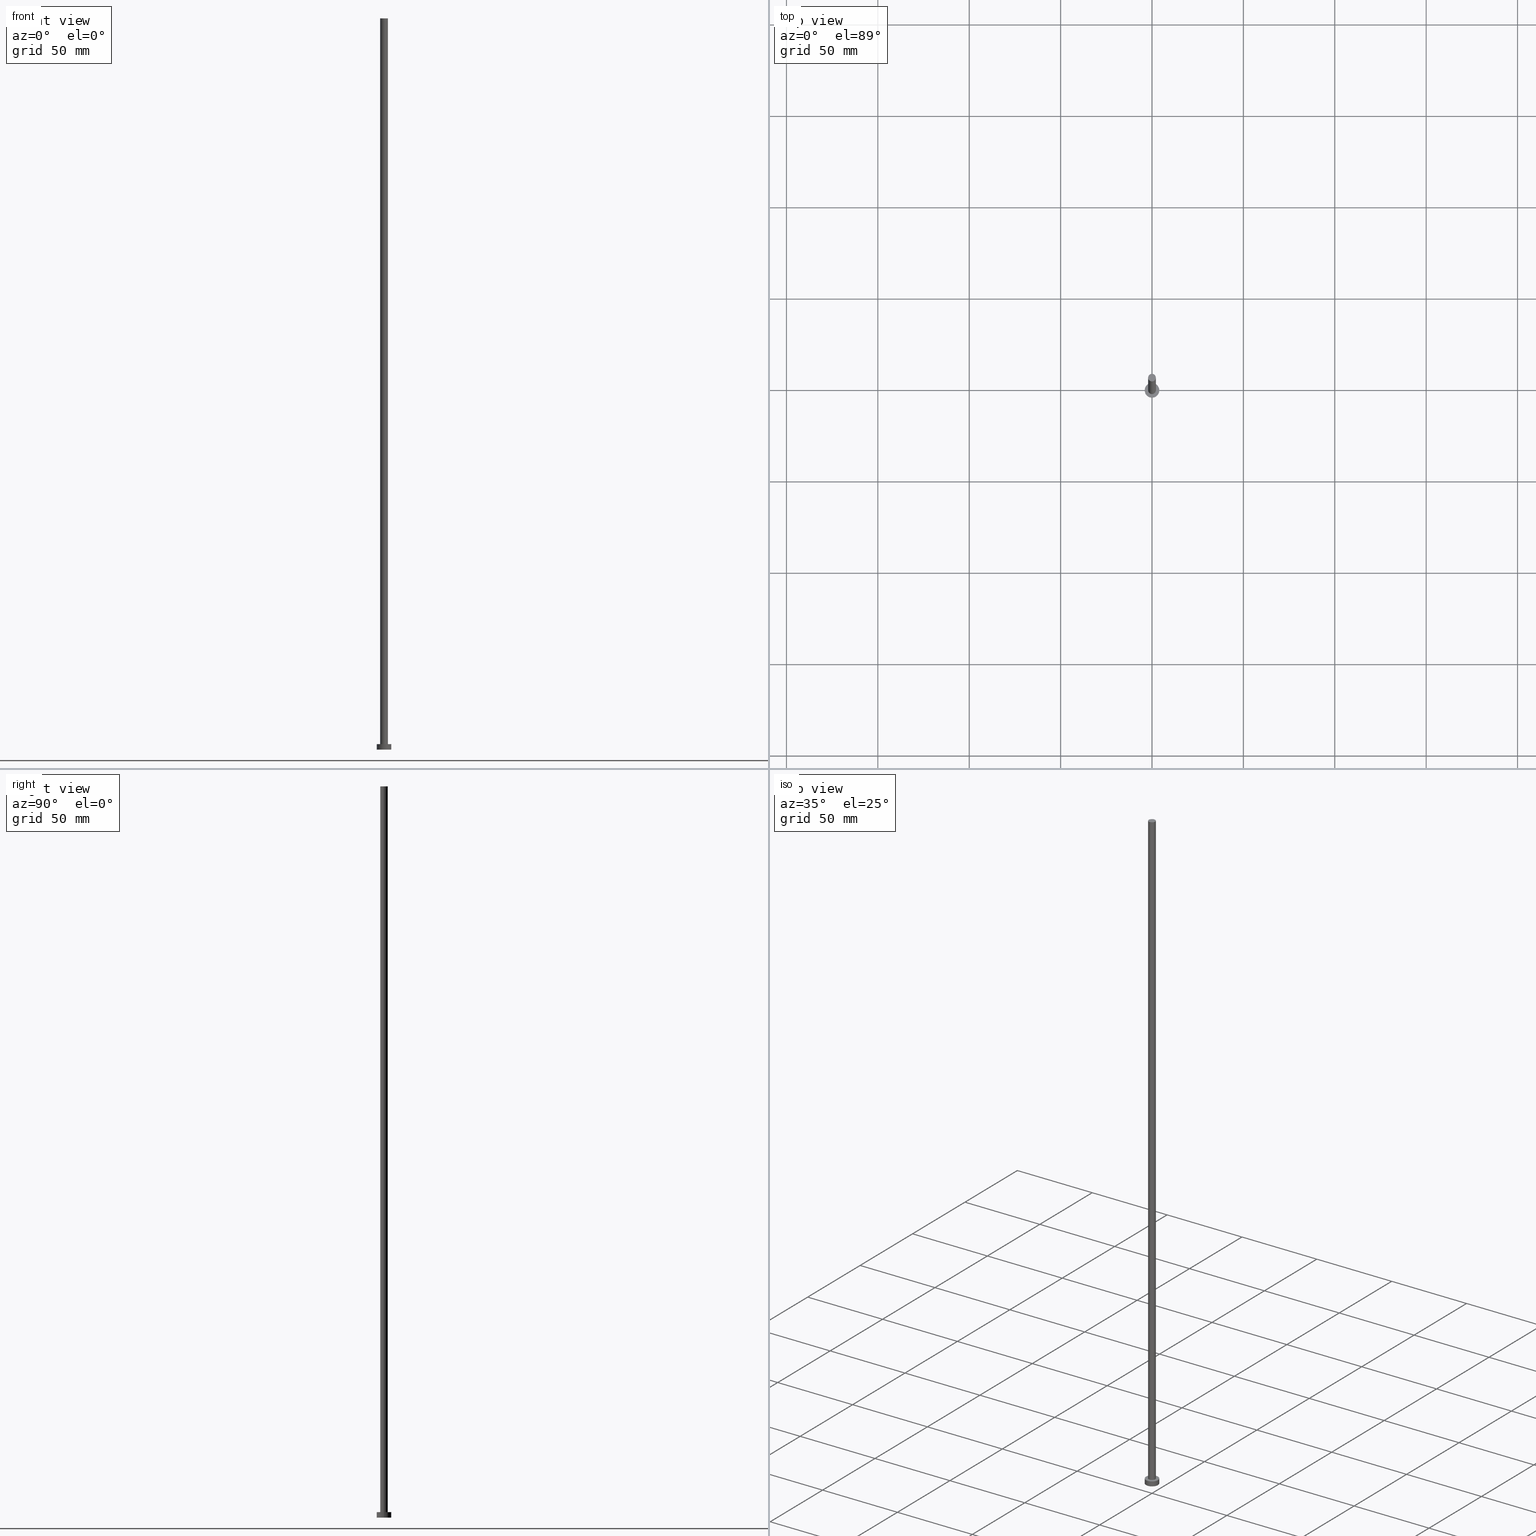
[diagram: canonical four-view strip — front | top / right | iso, engineering-drawing reading convention]
A machine part, canonical four-view strip (front | top / right | iso — engineering-drawing reading convention). The complete STEP part file that produces these views, byte-faithful:
ISO-10303-21;
HEADER;
FILE_DESCRIPTION (( 'STEP AP203' ),
    '1' );
FILE_NAME ('b960.STEP',
    '2023-02-13T13:55:37',
    ( '' ),
    ( '' ),
    'SwSTEP 2.0',
    'SolidWorks 2019',
    '' );
FILE_SCHEMA (( 'CONFIG_CONTROL_DESIGN' ));
ENDSEC;

DATA;
#1 = FACE_BOUND ( 'NONE', #91, .T. ) ;
#2 = LOCAL_TIME ( 14, 55, 37.00000000000000000, #255 ) ;
#3 = DIRECTION ( 'NONE',  ( -1.000000000000000000, 0.000000000000000000, 0.000000000000000000 ) ) ;
#4 = AXIS2_PLACEMENT_3D ( 'NONE', #163, #43, #201 ) ;
#5 = DIRECTION ( 'NONE',  ( -1.000000000000000000, 0.000000000000000000, 0.000000000000000000 ) ) ;
#6 = CC_DESIGN_SECURITY_CLASSIFICATION ( #122, ( #165 ) ) ;
#7 = ADVANCED_BREP_SHAPE_REPRESENTATION ( 'b960', ( #146, #160 ), #127 ) ;
#8 = CARTESIAN_POINT ( 'NONE',  ( 0.000000000000000000, 0.000000000000000000, 0.000000000000000000 ) ) ;
#9 = AXIS2_PLACEMENT_3D ( 'NONE', #212, #236, #94 ) ;
#10 = ORIENTED_EDGE ( 'NONE', *, *, #61, .F. ) ;
#11 = EDGE_LOOP ( 'NONE', ( #251, #14 ) ) ;
#12 = PRODUCT ( 'b960', 'b960', '', ( #70 ) ) ;
#13 = APPROVAL_ROLE ( '' ) ;
#14 = ORIENTED_EDGE ( 'NONE', *, *, #226, .T. ) ;
#15 = ORIENTED_EDGE ( 'NONE', *, *, #31, .T. ) ;
#16 = LINE ( 'NONE', #17, #227 ) ;
#17 = CARTESIAN_POINT ( 'NONE',  ( -4.000000000000000000, 0.000000000000000000, 3.000000000000000000 ) ) ;
#18 = CC_DESIGN_DATE_AND_TIME_ASSIGNMENT ( #152, #198, ( #85 ) ) ;
#19 = ADVANCED_FACE ( 'NONE', ( #57 ), #140, .T. ) ;
#20 = CALENDAR_DATE ( 2023, 13, 2 ) ;
#21 = APPLICATION_CONTEXT ( 'configuration controlled 3d designs of mechanical parts and assemblies' ) ;
#22 = CC_DESIGN_PERSON_AND_ORGANIZATION_ASSIGNMENT ( #60, #102, ( #165 ) ) ;
#23 = CALENDAR_DATE ( 2023, 13, 2 ) ;
#24 = CARTESIAN_POINT ( 'NONE',  ( 0.000000000000000000, 0.000000000000000000, 400.0000000000000000 ) ) ;
#25 = ORIENTED_EDGE ( 'NONE', *, *, #31, .F. ) ;
#26 = AXIS2_PLACEMENT_3D ( 'NONE', #161, #62, #199 ) ;
#27 = CC_DESIGN_PERSON_AND_ORGANIZATION_ASSIGNMENT ( #162, #38, ( #165 ) ) ;
#28 = CLOSED_SHELL ( 'NONE', ( #213, #128, #114, #242, #92, #19, #50 ) ) ;
#29 = ORIENTED_EDGE ( 'NONE', *, *, #69, .F. ) ;
#30 = EDGE_LOOP ( 'NONE', ( #54, #130, #168, #228 ) ) ;
#31 = EDGE_CURVE ( 'NONE', #132, #191, #124, .T. ) ;
#32 =( NAMED_UNIT ( * ) PLANE_ANGLE_UNIT ( ) SI_UNIT ( $, .RADIAN. ) );
#33 = PRODUCT_DEFINITION_SHAPE ( 'NONE', 'NONE',  #85 ) ;
#34 = DIRECTION ( 'NONE',  ( 1.000000000000000000, 0.000000000000000000, 0.000000000000000000 ) ) ;
#35 = CARTESIAN_POINT ( 'NONE',  ( 0.000000000000000000, 0.000000000000000000, 0.000000000000000000 ) ) ;
#36 = ORIENTED_EDGE ( 'NONE', *, *, #173, .T. ) ;
#37 = EDGE_CURVE ( 'NONE', #191, #51, #157, .T. ) ;
#38 = PERSON_AND_ORGANIZATION_ROLE ( 'design_supplier' ) ;
#39 = CARTESIAN_POINT ( 'NONE',  ( 0.000000000000000000, 0.000000000000000000, 400.0000000000000000 ) ) ;
#40 = DATE_AND_TIME ( #98, #2 ) ;
#41 = PERSON_AND_ORGANIZATION_ROLE ( 'creator' ) ;
#42 = CC_DESIGN_DATE_AND_TIME_ASSIGNMENT ( #40, #78, ( #122 ) ) ;
#43 = DIRECTION ( 'NONE',  ( 0.000000000000000000, 0.000000000000000000, 1.000000000000000000 ) ) ;
#44 = AXIS2_PLACEMENT_3D ( 'NONE', #113, #55, #139 ) ;
#45 = DIRECTION ( 'NONE',  ( 0.000000000000000000, 0.000000000000000000, 1.000000000000000000 ) ) ;
#46 = CARTESIAN_POINT ( 'NONE',  ( 0.000000000000000000, 0.000000000000000000, 3.000000000000000000 ) ) ;
#47 = ORGANIZATION ( 'NEUR�EN�', 'NEUR�EN�', '' ) ;
#48 = DIRECTION ( 'NONE',  ( -0.000000000000000000, -0.000000000000000000, -1.000000000000000000 ) ) ;
#49 = CARTESIAN_POINT ( 'NONE',  ( -2.100000000000000089, 0.000000000000000000, 400.0000000000000000 ) ) ;
#50 = ADVANCED_FACE ( 'NONE', ( #231 ), #208, .T. ) ;
#51 = VERTEX_POINT ( 'NONE', #120 ) ;
#52 = PERSON ( 'NEUR�EN�', 'NEUR�EN�', 'NEUR�EN�', ('NEUR�EN�'), ('NEUR�EN�'), ('NEUR�EN�') ) ;
#53 = DIRECTION ( 'NONE',  ( 0.000000000000000000, 0.000000000000000000, 1.000000000000000000 ) ) ;
#54 = ORIENTED_EDGE ( 'NONE', *, *, #226, .F. ) ;
#55 = DIRECTION ( 'NONE',  ( 0.000000000000000000, 0.000000000000000000, 1.000000000000000000 ) ) ;
#56 = APPROVAL_DATE_TIME ( #142, #235 ) ;
#57 = FACE_OUTER_BOUND ( 'NONE', #205, .T. ) ;
#58 = APPROVAL_STATUS ( 'not_yet_approved' ) ;
#59 = COORDINATED_UNIVERSAL_TIME_OFFSET ( 1, 0, .AHEAD. ) ;
#60 = PERSON_AND_ORGANIZATION ( #52, #47 ) ;
#61 = EDGE_CURVE ( 'NONE', #132, #156, #16, .T. ) ;
#62 = DIRECTION ( 'NONE',  ( 0.000000000000000000, 0.000000000000000000, 1.000000000000000000 ) ) ;
#63 = APPLICATION_CONTEXT ( 'configuration controlled 3d designs of mechanical parts and assemblies' ) ;
#64 = CARTESIAN_POINT ( 'NONE',  ( -4.000000000000000000, 0.000000000000000000, 0.000000000000000000 ) ) ;
#65 = EDGE_CURVE ( 'NONE', #110, #254, #233, .T. ) ;
#66 = EDGE_CURVE ( 'NONE', #156, #51, #147, .T. ) ;
#67 = LOCAL_TIME ( 14, 55, 37.00000000000000000, #197 ) ;
#68 = ORIENTED_EDGE ( 'NONE', *, *, #66, .T. ) ;
#69 = EDGE_CURVE ( 'NONE', #51, #156, #155, .T. ) ;
#70 = MECHANICAL_CONTEXT ( 'NONE', #21, 'mechanical' ) ;
#71 = EDGE_LOOP ( 'NONE', ( #246, #29 ) ) ;
#72 = LOCAL_TIME ( 14, 55, 37.00000000000000000, #250 ) ;
#73 = CARTESIAN_POINT ( 'NONE',  ( 0.000000000000000000, 0.000000000000000000, 3.000000000000000000 ) ) ;
#74 = APPLICATION_PROTOCOL_DEFINITION ( 'international standard', 'config_control_design', 1994, #63 ) ;
#75 = CARTESIAN_POINT ( 'NONE',  ( 0.000000000000000000, 0.000000000000000000, 0.000000000000000000 ) ) ;
#76 = AXIS2_PLACEMENT_3D ( 'NONE', #75, #234, #34 ) ;
#77 = DIRECTION ( 'NONE',  ( -0.000000000000000000, -0.000000000000000000, -1.000000000000000000 ) ) ;
#78 = DATE_TIME_ROLE ( 'classification_date' ) ;
#79 = DATE_AND_TIME ( #23, #67 ) ;
#80 = PERSON_AND_ORGANIZATION ( #52, #47 ) ;
#81 = CARTESIAN_POINT ( 'NONE',  ( 2.100000000000000089, 2.571758278209441957E-16, 400.0000000000000000 ) ) ;
#82 = CYLINDRICAL_SURFACE ( 'NONE', #248, 4.000000000000000000 ) ;
#83 = EDGE_CURVE ( 'NONE', #112, #110, #194, .T. ) ;
#84 = CIRCLE ( 'NONE', #109, 2.100000000000000089 ) ;
#85 = PRODUCT_DEFINITION ( 'NEZN�M�', '', #165, #178 ) ;
#86 = AXIS2_PLACEMENT_3D ( 'NONE', #126, #145, #3 ) ;
#87 = CIRCLE ( 'NONE', #4, 2.100000000000000089 ) ;
#88 = DIRECTION ( 'NONE',  ( 1.000000000000000000, 0.000000000000000000, -0.000000000000000000 ) ) ;
#89 = APPROVAL_PERSON_ORGANIZATION ( #121, #235, #159 ) ;
#90 = ORIENTED_EDGE ( 'NONE', *, *, #37, .F. ) ;
#91 = EDGE_LOOP ( 'NONE', ( #170, #186 ) ) ;
#92 = ADVANCED_FACE ( 'NONE', ( #185 ), #108, .F. ) ;
#93 = ORIENTED_EDGE ( 'NONE', *, *, #207, .F. ) ;
#94 = DIRECTION ( 'NONE',  ( -1.000000000000000000, 0.000000000000000000, 0.000000000000000000 ) ) ;
#95 = CARTESIAN_POINT ( 'NONE',  ( -2.100000000000000089, 0.000000000000000000, 400.0000000000000000 ) ) ;
#96 = DIRECTION ( 'NONE',  ( 1.000000000000000000, 0.000000000000000000, 0.000000000000000000 ) ) ;
#97 = CC_DESIGN_APPROVAL ( #235, ( #122 ) ) ;
#98 = CALENDAR_DATE ( 2023, 13, 2 ) ;
#99 = APPROVAL_STATUS ( 'not_yet_approved' ) ;
#100 = CYLINDRICAL_SURFACE ( 'NONE', #214, 2.100000000000000089 ) ;
#101 = SECURITY_CLASSIFICATION_LEVEL ( 'unclassified' ) ;
#102 = PERSON_AND_ORGANIZATION_ROLE ( 'creator' ) ;
#103 = CARTESIAN_POINT ( 'NONE',  ( 2.100000000000000089, 2.571758278209441957E-16, 3.000000000000000000 ) ) ;
#104 = DIRECTION ( 'NONE',  ( -0.000000000000000000, -0.000000000000000000, -1.000000000000000000 ) ) ;
#105 = LOCAL_TIME ( 14, 55, 37.00000000000000000, #144 ) ;
#106 = CARTESIAN_POINT ( 'NONE',  ( 0.000000000000000000, 0.000000000000000000, 400.0000000000000000 ) ) ;
#107 = CYLINDRICAL_SURFACE ( 'NONE', #86, 4.000000000000000000 ) ;
#108 = PLANE ( 'NONE',  #182 ) ;
#109 = AXIS2_PLACEMENT_3D ( 'NONE', #46, #175, #177 ) ;
#110 = VERTEX_POINT ( 'NONE', #224 ) ;
#111 = DIRECTION ( 'NONE',  ( 1.000000000000000000, 0.000000000000000000, -0.000000000000000000 ) ) ;
#112 = VERTEX_POINT ( 'NONE', #49 ) ;
#113 = CARTESIAN_POINT ( 'NONE',  ( 0.000000000000000000, 0.000000000000000000, 0.000000000000000000 ) ) ;
#114 = ADVANCED_FACE ( 'NONE', ( #183 ), #107, .T. ) ;
#115 = APPROVAL_STATUS ( 'not_yet_approved' ) ;
#116 = DIRECTION ( 'NONE',  ( 0.000000000000000000, 0.000000000000000000, 1.000000000000000000 ) ) ;
#117 = PERSON_AND_ORGANIZATION ( #52, #47 ) ;
#118 = AXIS2_PLACEMENT_3D ( 'NONE', #245, #45, #221 ) ;
#119 = APPROVAL_PERSON_ORGANIZATION ( #210, #181, #13 ) ;
#120 = CARTESIAN_POINT ( 'NONE',  ( 4.000000000000000000, 4.898587196589412829E-16, 0.000000000000000000 ) ) ;
#121 = PERSON_AND_ORGANIZATION ( #52, #47 ) ;
#122 = SECURITY_CLASSIFICATION ( '', '', #101 ) ;
#123 = FACE_OUTER_BOUND ( 'NONE', #192, .T. ) ;
#124 = CIRCLE ( 'NONE', #243, 4.000000000000000000 ) ;
#125 = CARTESIAN_POINT ( 'NONE',  ( 4.000000000000000000, 4.898587196589412829E-16, 3.000000000000000000 ) ) ;
#126 = CARTESIAN_POINT ( 'NONE',  ( 0.000000000000000000, 0.000000000000000000, 3.000000000000000000 ) ) ;
#127 =( GEOMETRIC_REPRESENTATION_CONTEXT ( 3 ) GLOBAL_UNCERTAINTY_ASSIGNED_CONTEXT ( ( #238 ) ) GLOBAL_UNIT_ASSIGNED_CONTEXT ( ( #171, #32, #230 ) ) REPRESENTATION_CONTEXT ( 'NONE', 'WORKASPACE' ) );
#128 = ADVANCED_FACE ( 'NONE', ( #164 ), #82, .T. ) ;
#129 = ORIENTED_EDGE ( 'NONE', *, *, #61, .T. ) ;
#130 = ORIENTED_EDGE ( 'NONE', *, *, #133, .T. ) ;
#131 = VECTOR ( 'NONE', #252, 1000.000000000000000 ) ;
#132 = VERTEX_POINT ( 'NONE', #150 ) ;
#133 = EDGE_CURVE ( 'NONE', #151, #254, #241, .T. ) ;
#134 = ORIENTED_EDGE ( 'NONE', *, *, #83, .T. ) ;
#135 = PERSON_AND_ORGANIZATION_ROLE ( 'design_owner' ) ;
#136 = CIRCLE ( 'NONE', #232, 2.100000000000000089 ) ;
#137 = APPLICATION_PROTOCOL_DEFINITION ( 'international standard', 'config_control_design', 1994, #21 ) ;
#138 = PERSON_AND_ORGANIZATION ( #52, #47 ) ;
#139 = DIRECTION ( 'NONE',  ( 1.000000000000000000, 0.000000000000000000, 0.000000000000000000 ) ) ;
#140 = CYLINDRICAL_SURFACE ( 'NONE', #9, 2.100000000000000089 ) ;
#141 = APPROVAL_DATE_TIME ( #206, #181 ) ;
#142 = DATE_AND_TIME ( #20, #105 ) ;
#143 = APPROVAL_DATE_TIME ( #79, #169 ) ;
#144 = COORDINATED_UNIVERSAL_TIME_OFFSET ( 1, 0, .AHEAD. ) ;
#145 = DIRECTION ( 'NONE',  ( -0.000000000000000000, -0.000000000000000000, -1.000000000000000000 ) ) ;
#146 = MANIFOLD_SOLID_BREP ( 'P�idat vysunut�m3', #28 ) ;
#147 = CIRCLE ( 'NONE', #76, 4.000000000000000000 ) ;
#148 = CARTESIAN_POINT ( 'NONE',  ( 2.100000000000000089, 2.571758278209441957E-16, 400.0000000000000000 ) ) ;
#149 = DIRECTION ( 'NONE',  ( -0.000000000000000000, -0.000000000000000000, -1.000000000000000000 ) ) ;
#150 = CARTESIAN_POINT ( 'NONE',  ( -4.000000000000000000, 0.000000000000000000, 3.000000000000000000 ) ) ;
#151 = VERTEX_POINT ( 'NONE', #81 ) ;
#152 = DATE_AND_TIME ( #187, #72 ) ;
#153 = ORIENTED_EDGE ( 'NONE', *, *, #133, .F. ) ;
#154 = DIRECTION ( 'NONE',  ( 1.000000000000000000, 0.000000000000000000, 0.000000000000000000 ) ) ;
#155 = CIRCLE ( 'NONE', #44, 4.000000000000000000 ) ;
#156 = VERTEX_POINT ( 'NONE', #64 ) ;
#157 = LINE ( 'NONE', #172, #131 ) ;
#158 = DIRECTION ( 'NONE',  ( 0.000000000000000000, 0.000000000000000000, 1.000000000000000000 ) ) ;
#159 = APPROVAL_ROLE ( '' ) ;
#160 = AXIS2_PLACEMENT_3D ( 'NONE', #35, #158, #190 ) ;
#161 = CARTESIAN_POINT ( 'NONE',  ( 0.000000000000000000, 0.000000000000000000, 3.000000000000000000 ) ) ;
#162 = PERSON_AND_ORGANIZATION ( #52, #47 ) ;
#163 = CARTESIAN_POINT ( 'NONE',  ( 0.000000000000000000, 0.000000000000000000, 400.0000000000000000 ) ) ;
#164 = FACE_OUTER_BOUND ( 'NONE', #249, .T. ) ;
#165 = PRODUCT_DEFINITION_FORMATION_WITH_SPECIFIED_SOURCE ( 'LIBOVOLN�', '', #12, .NOT_KNOWN. ) ;
#166 = CC_DESIGN_PERSON_AND_ORGANIZATION_ASSIGNMENT ( #215, #41, ( #85 ) ) ;
#167 = DIRECTION ( 'NONE',  ( 0.000000000000000000, 0.000000000000000000, 1.000000000000000000 ) ) ;
#168 = ORIENTED_EDGE ( 'NONE', *, *, #176, .T. ) ;
#169 = APPROVAL ( #99, 'NEUR�EN�' ) ;
#170 = ORIENTED_EDGE ( 'NONE', *, *, #65, .F. ) ;
#171 =( LENGTH_UNIT ( ) NAMED_UNIT ( * ) SI_UNIT ( .MILLI., .METRE. ) );
#172 = CARTESIAN_POINT ( 'NONE',  ( 4.000000000000000000, 4.898587196589412829E-16, 3.000000000000000000 ) ) ;
#173 = EDGE_CURVE ( 'NONE', #191, #132, #189, .T. ) ;
#174 = DIRECTION ( 'NONE',  ( -0.000000000000000000, -0.000000000000000000, -1.000000000000000000 ) ) ;
#175 = DIRECTION ( 'NONE',  ( 0.000000000000000000, 0.000000000000000000, 1.000000000000000000 ) ) ;
#176 = EDGE_CURVE ( 'NONE', #254, #110, #84, .T. ) ;
#177 = DIRECTION ( 'NONE',  ( 1.000000000000000000, 0.000000000000000000, 0.000000000000000000 ) ) ;
#178 = DESIGN_CONTEXT ( 'detailed design', #63, 'design' ) ;
#179 = DIRECTION ( 'NONE',  ( 0.000000000000000000, 0.000000000000000000, 1.000000000000000000 ) ) ;
#180 = PLANE ( 'NONE',  #26 ) ;
#181 = APPROVAL ( #115, 'NEUR�EN�' ) ;
#182 = AXIS2_PLACEMENT_3D ( 'NONE', #8, #167, #88 ) ;
#183 = FACE_OUTER_BOUND ( 'NONE', #229, .T. ) ;
#184 = ORIENTED_EDGE ( 'NONE', *, *, #69, .T. ) ;
#185 = FACE_OUTER_BOUND ( 'NONE', #71, .T. ) ;
#186 = ORIENTED_EDGE ( 'NONE', *, *, #176, .F. ) ;
#187 = CALENDAR_DATE ( 2023, 13, 2 ) ;
#188 = ORIENTED_EDGE ( 'NONE', *, *, #65, .T. ) ;
#189 = CIRCLE ( 'NONE', #118, 4.000000000000000000 ) ;
#190 = DIRECTION ( 'NONE',  ( 1.000000000000000000, 0.000000000000000000, 0.000000000000000000 ) ) ;
#191 = VERTEX_POINT ( 'NONE', #125 ) ;
#192 = EDGE_LOOP ( 'NONE', ( #15, #36 ) ) ;
#193 = CALENDAR_DATE ( 2023, 13, 2 ) ;
#194 = LINE ( 'NONE', #95, #220 ) ;
#195 = AXIS2_PLACEMENT_3D ( 'NONE', #39, #116, #111 ) ;
#196 = CARTESIAN_POINT ( 'NONE',  ( 0.000000000000000000, 0.000000000000000000, 3.000000000000000000 ) ) ;
#197 = COORDINATED_UNIVERSAL_TIME_OFFSET ( 1, 0, .AHEAD. ) ;
#198 = DATE_TIME_ROLE ( 'creation_date' ) ;
#199 = DIRECTION ( 'NONE',  ( 1.000000000000000000, 0.000000000000000000, -0.000000000000000000 ) ) ;
#200 = APPROVAL_PERSON_ORGANIZATION ( #80, #169, #217 ) ;
#201 = DIRECTION ( 'NONE',  ( 1.000000000000000000, 0.000000000000000000, 0.000000000000000000 ) ) ;
#202 = CC_DESIGN_PERSON_AND_ORGANIZATION_ASSIGNMENT ( #138, #135, ( #12 ) ) ;
#203 = DIRECTION ( 'NONE',  ( 1.000000000000000000, 0.000000000000000000, 0.000000000000000000 ) ) ;
#204 = ORIENTED_EDGE ( 'NONE', *, *, #37, .T. ) ;
#205 = EDGE_LOOP ( 'NONE', ( #153, #93, #134, #188 ) ) ;
#206 = DATE_AND_TIME ( #193, #247 ) ;
#207 = EDGE_CURVE ( 'NONE', #112, #151, #87, .T. ) ;
#208 = PLANE ( 'NONE',  #195 ) ;
#209 = DIRECTION ( 'NONE',  ( 0.000000000000000000, 0.000000000000000000, 1.000000000000000000 ) ) ;
#210 = PERSON_AND_ORGANIZATION ( #52, #47 ) ;
#211 = CC_DESIGN_APPROVAL ( #169, ( #165 ) ) ;
#212 = CARTESIAN_POINT ( 'NONE',  ( 0.000000000000000000, 0.000000000000000000, 400.0000000000000000 ) ) ;
#213 = ADVANCED_FACE ( 'NONE', ( #223 ), #100, .T. ) ;
#214 = AXIS2_PLACEMENT_3D ( 'NONE', #24, #48, #239 ) ;
#215 = PERSON_AND_ORGANIZATION ( #52, #47 ) ;
#216 = SHAPE_DEFINITION_REPRESENTATION ( #33, #7 ) ;
#217 = APPROVAL_ROLE ( '' ) ;
#218 = VECTOR ( 'NONE', #149, 1000.000000000000000 ) ;
#219 = CARTESIAN_POINT ( 'NONE',  ( 0.000000000000000000, 0.000000000000000000, 3.000000000000000000 ) ) ;
#220 = VECTOR ( 'NONE', #77, 1000.000000000000000 ) ;
#221 = DIRECTION ( 'NONE',  ( 1.000000000000000000, 0.000000000000000000, 0.000000000000000000 ) ) ;
#222 = PRODUCT_RELATED_PRODUCT_CATEGORY ( 'detail', '', ( #12 ) ) ;
#223 = FACE_OUTER_BOUND ( 'NONE', #30, .T. ) ;
#224 = CARTESIAN_POINT ( 'NONE',  ( -2.100000000000000089, 0.000000000000000000, 3.000000000000000000 ) ) ;
#225 = ORIENTED_EDGE ( 'NONE', *, *, #173, .F. ) ;
#226 = EDGE_CURVE ( 'NONE', #151, #112, #136, .T. ) ;
#227 = VECTOR ( 'NONE', #174, 1000.000000000000000 ) ;
#228 = ORIENTED_EDGE ( 'NONE', *, *, #83, .F. ) ;
#229 = EDGE_LOOP ( 'NONE', ( #90, #25, #129, #68 ) ) ;
#230 =( NAMED_UNIT ( * ) SI_UNIT ( $, .STERADIAN. ) SOLID_ANGLE_UNIT ( ) );
#231 = FACE_OUTER_BOUND ( 'NONE', #11, .T. ) ;
#232 = AXIS2_PLACEMENT_3D ( 'NONE', #106, #179, #203 ) ;
#233 = CIRCLE ( 'NONE', #253, 2.100000000000000089 ) ;
#234 = DIRECTION ( 'NONE',  ( 0.000000000000000000, 0.000000000000000000, 1.000000000000000000 ) ) ;
#235 = APPROVAL ( #58, 'NEUR�EN�' ) ;
#236 = DIRECTION ( 'NONE',  ( -0.000000000000000000, -0.000000000000000000, -1.000000000000000000 ) ) ;
#237 = PERSON_AND_ORGANIZATION_ROLE ( 'classification_officer' ) ;
#238 = UNCERTAINTY_MEASURE_WITH_UNIT (LENGTH_MEASURE( 1.000000000000000082E-05 ), #171, 'distance_accuracy_value', 'NONE');
#239 = DIRECTION ( 'NONE',  ( -1.000000000000000000, 0.000000000000000000, 0.000000000000000000 ) ) ;
#240 = CC_DESIGN_PERSON_AND_ORGANIZATION_ASSIGNMENT ( #117, #237, ( #122 ) ) ;
#241 = LINE ( 'NONE', #148, #218 ) ;
#242 = ADVANCED_FACE ( 'NONE', ( #1, #123 ), #180, .T. ) ;
#243 = AXIS2_PLACEMENT_3D ( 'NONE', #73, #53, #154 ) ;
#244 = CC_DESIGN_APPROVAL ( #181, ( #85 ) ) ;
#245 = CARTESIAN_POINT ( 'NONE',  ( 0.000000000000000000, 0.000000000000000000, 3.000000000000000000 ) ) ;
#246 = ORIENTED_EDGE ( 'NONE', *, *, #66, .F. ) ;
#247 = LOCAL_TIME ( 14, 55, 37.00000000000000000, #59 ) ;
#248 = AXIS2_PLACEMENT_3D ( 'NONE', #219, #104, #5 ) ;
#249 = EDGE_LOOP ( 'NONE', ( #225, #204, #184, #10 ) ) ;
#250 = COORDINATED_UNIVERSAL_TIME_OFFSET ( 1, 0, .AHEAD. ) ;
#251 = ORIENTED_EDGE ( 'NONE', *, *, #207, .T. ) ;
#252 = DIRECTION ( 'NONE',  ( -0.000000000000000000, -0.000000000000000000, -1.000000000000000000 ) ) ;
#253 = AXIS2_PLACEMENT_3D ( 'NONE', #196, #209, #96 ) ;
#254 = VERTEX_POINT ( 'NONE', #103 ) ;
#255 = COORDINATED_UNIVERSAL_TIME_OFFSET ( 1, 0, .AHEAD. ) ;
ENDSEC;
END-ISO-10303-21;
